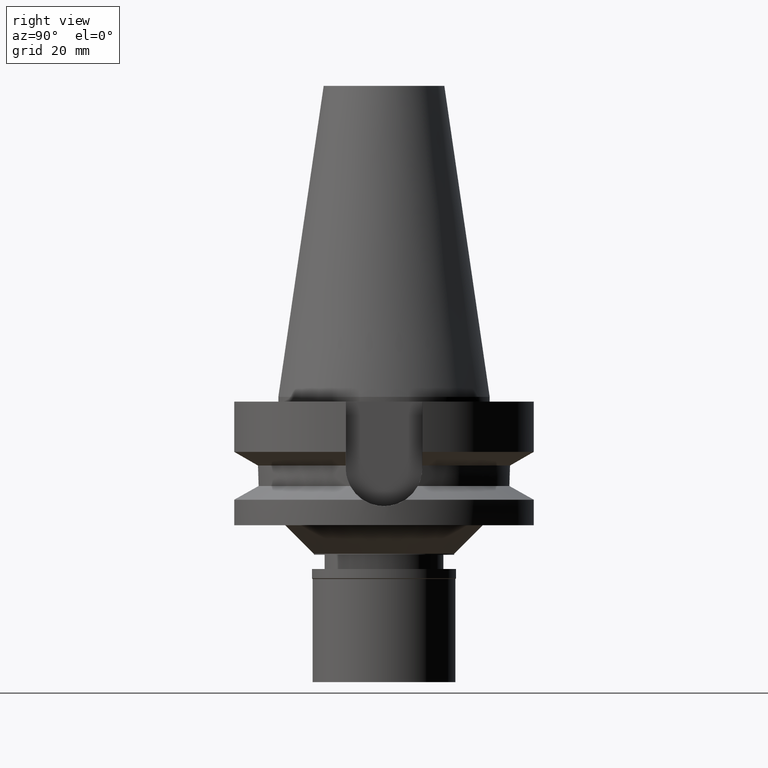
[diagram: clean part render]
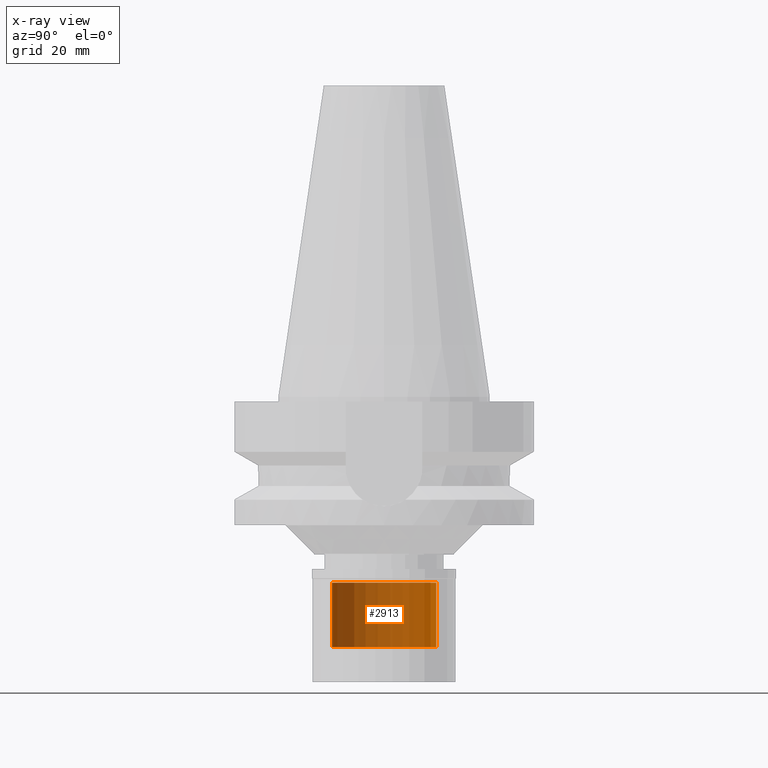
[diagram: x-ray — body ghosted, one internal face saturated and labeled with its STEP entity id]
A machine part, right view, then the same camera in x-ray: the body is ghosted and one INTERNAL B-rep face — a face not visible from any outside direction — is saturated and labeled: STEP entity #2913.
In plain terms, the highlighted cylindrical surface (partial cylindrical patch) has radius 11 mm, axis along (0, 0, -1).
Its self-contained STEP definition (entity closure, byte-faithful):
#237 = DIRECTION ( 'NONE',  ( 0.0000000000000000000, 0.0000000000000000000, 1.000000000000000000 ) ) ;
#280 = ORIENTED_EDGE ( 'NONE', *, *, #1353, .F. ) ;
#378 = CARTESIAN_POINT ( 'NONE',  ( 0.0000000000000000000, -11.00000000000000000, -16.50000000000000000 ) ) ;
#421 = CYLINDRICAL_SURFACE ( 'NONE', #1579, 11.00000000000000000 ) ;
#438 = CIRCLE ( 'NONE', #495, 11.00000000000000000 ) ;
#449 = EDGE_LOOP ( 'NONE', ( #2853, #280, #2153, #2144 ) ) ;
#495 = AXIS2_PLACEMENT_3D ( 'NONE', #708, #237, #2823 ) ;
#605 = AXIS2_PLACEMENT_3D ( 'NONE', #1285, #1040, #2963 ) ;
#708 = CARTESIAN_POINT ( 'NONE',  ( 0.0000000000000000000, 0.0000000000000000000, -2.899999999999999911 ) ) ;
#750 = VERTEX_POINT ( 'NONE', #2951 ) ;
#792 = VECTOR ( 'NONE', #2986, 1000.000000000000000 ) ;
#919 = VERTEX_POINT ( 'NONE', #2401 ) ;
#1040 = DIRECTION ( 'NONE',  ( 0.0000000000000000000, 0.0000000000000000000, -1.000000000000000000 ) ) ;
#1067 = DIRECTION ( 'NONE',  ( 0.0000000000000000000, 0.0000000000000000000, 1.000000000000000000 ) ) ;
#1081 = CARTESIAN_POINT ( 'NONE',  ( 0.0000000000000000000, -11.00000000000000000, -16.50000000000000000 ) ) ;
#1285 = CARTESIAN_POINT ( 'NONE',  ( 0.0000000000000000000, 0.0000000000000000000, -16.50000000000000000 ) ) ;
#1348 = LINE ( 'NONE', #1847, #792 ) ;
#1353 = EDGE_CURVE ( 'NONE', #1550, #2202, #2940, .T. ) ;
#1358 = CARTESIAN_POINT ( 'NONE',  ( 0.0000000000000000000, 0.0000000000000000000, 0.0000000000000000000 ) ) ;
#1372 = DIRECTION ( 'NONE',  ( 0.0000000000000000000, -1.000000000000000000, 0.0000000000000000000 ) ) ;
#1550 = VERTEX_POINT ( 'NONE', #378 ) ;
#1579 = AXIS2_PLACEMENT_3D ( 'NONE', #1358, #2542, #1372 ) ;
#1829 = EDGE_CURVE ( 'NONE', #750, #2202, #438, .T. ) ;
#1847 = CARTESIAN_POINT ( 'NONE',  ( 0.0000000000000000000, 11.00000000000000000, -16.50000000000000000 ) ) ;
#2020 = CIRCLE ( 'NONE', #605, 11.00000000000000000 ) ;
#2144 = ORIENTED_EDGE ( 'NONE', *, *, #2889, .T. ) ;
#2153 = ORIENTED_EDGE ( 'NONE', *, *, #2653, .T. ) ;
#2202 = VERTEX_POINT ( 'NONE', #2990 ) ;
#2401 = CARTESIAN_POINT ( 'NONE',  ( 0.0000000000000000000, 11.00000000000000000, -16.50000000000000000 ) ) ;
#2531 = FACE_OUTER_BOUND ( 'NONE', #449, .T. ) ;
#2542 = DIRECTION ( 'NONE',  ( 0.0000000000000000000, 0.0000000000000000000, -1.000000000000000000 ) ) ;
#2653 = EDGE_CURVE ( 'NONE', #1550, #919, #2020, .T. ) ;
#2823 = DIRECTION ( 'NONE',  ( 0.0000000000000000000, 1.000000000000000000, 0.0000000000000000000 ) ) ;
#2853 = ORIENTED_EDGE ( 'NONE', *, *, #1829, .T. ) ;
#2889 = EDGE_CURVE ( 'NONE', #919, #750, #1348, .T. ) ;
#2913 = ADVANCED_FACE ( 'NONE', ( #2531 ), #421, .F. ) ;
#2937 = VECTOR ( 'NONE', #1067, 1000.000000000000000 ) ;
#2940 = LINE ( 'NONE', #1081, #2937 ) ;
#2951 = CARTESIAN_POINT ( 'NONE',  ( 0.0000000000000000000, 11.00000000000000000, -2.899999999999999911 ) ) ;
#2963 = DIRECTION ( 'NONE',  ( 0.0000000000000000000, -1.000000000000000000, 0.0000000000000000000 ) ) ;
#2986 = DIRECTION ( 'NONE',  ( 0.0000000000000000000, 0.0000000000000000000, 1.000000000000000000 ) ) ;
#2990 = CARTESIAN_POINT ( 'NONE',  ( 0.0000000000000000000, -11.00000000000000000, -2.899999999999999911 ) ) ;